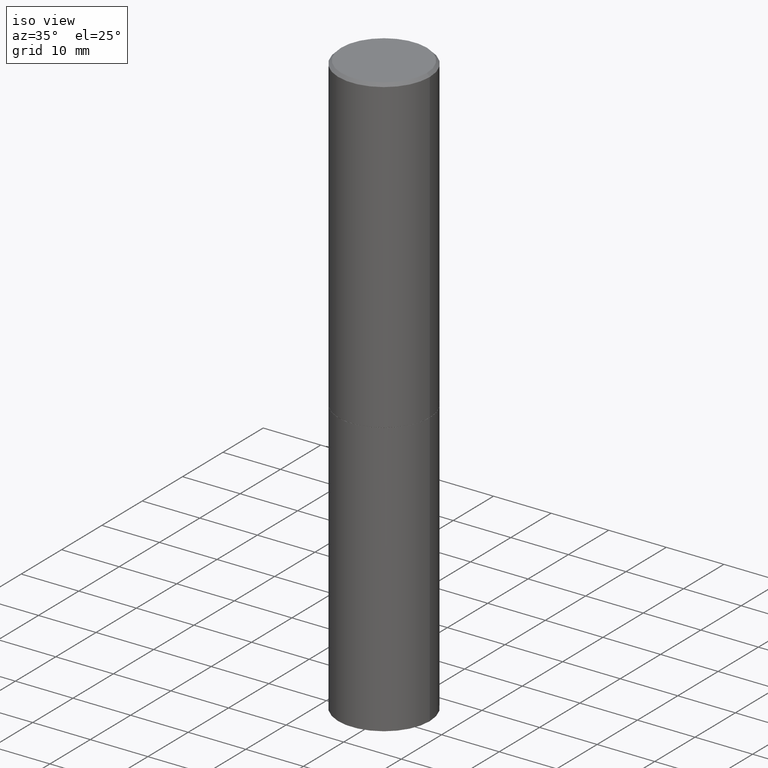
[diagram: clean part render]
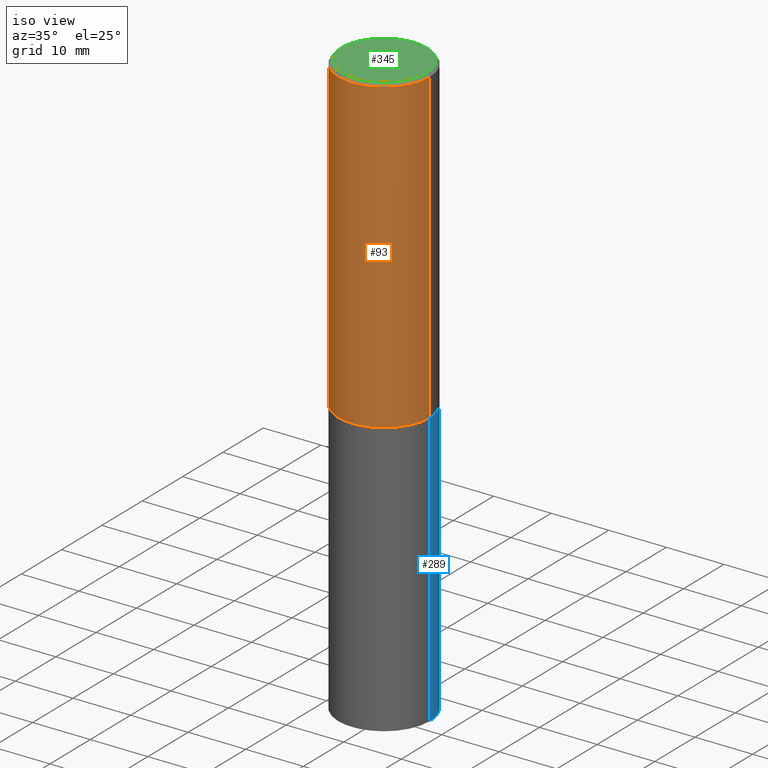
[diagram: same view with three faces highlighted in distinct colors, each labeled with its STEP entity id]
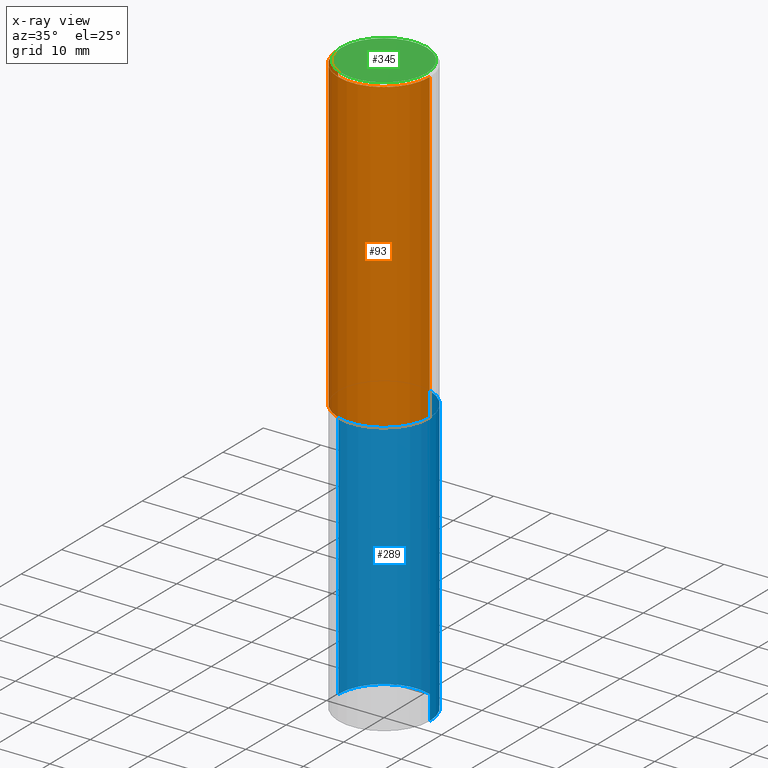
[diagram: x-ray of the same camera — body ghosted, the three highlighted faces saturated]
A machine part, iso view with three faces highlighted in distinct colors.
The next image is the same camera in x-ray (body ghosted, the three faces saturated) — at least one of them is partly hidden behind the body in this view.
Their STEP definitions:

[orange] entity #93 — the highlighted cylindrical surface (partial cylindrical patch) has radius 7.9375 mm, axis along (-0, 0, 1).
#9 = EDGE_CURVE ( 'NONE', #137, #261, #304, .T. ) ;
#17 = CIRCLE ( 'NONE', #125, 0.3125000000000000000 ) ;
#38 = DIRECTION ( 'NONE',  ( 1.000000000000000000, -6.982962677686265133E-15, 0.000000000000000000 ) ) ;
#51 = VECTOR ( 'NONE', #194, 39.37007874015748143 ) ;
#78 = EDGE_CURVE ( 'NONE', #113, #261, #82, .T. ) ;
#82 = LINE ( 'NONE', #112, #51 ) ;
#87 = CYLINDRICAL_SURFACE ( 'NONE', #147, 0.3124999999999998890 ) ;
#93 = ADVANCED_FACE ( 'NONE', ( #225 ), #87, .T. ) ;
#112 = CARTESIAN_POINT ( 'NONE',  ( 0.3124999999999998890, -2.182175836776957558E-15, 1.523805242436229235E-29 ) ) ;
#113 = VERTEX_POINT ( 'NONE', #162 ) ;
#125 = AXIS2_PLACEMENT_3D ( 'NONE', #169, #205, #38 ) ;
#137 = VERTEX_POINT ( 'NONE', #142 ) ;
#142 = CARTESIAN_POINT ( 'NONE',  ( -0.3124999999999998335, 2.112346210000093866E-15, -0.02000000000000007674 ) ) ;
#147 = AXIS2_PLACEMENT_3D ( 'NONE', #303, #360, #199 ) ;
#150 = EDGE_CURVE ( 'NONE', #357, #137, #262, .T. ) ;
#162 = CARTESIAN_POINT ( 'NONE',  ( 0.3125000000000000000, -9.598082200479797386E-15, -2.123999999999999666 ) ) ;
#165 = DIRECTION ( 'NONE',  ( -2.445468806185136597E-29, 3.491481338843145583E-15, 1.000000000000000000 ) ) ;
#169 = CARTESIAN_POINT ( 'NONE',  ( 5.194175744337229665E-29, -7.415906363702840616E-15, -2.123999999999999666 ) ) ;
#170 = ORIENTED_EDGE ( 'NONE', *, *, #9, .F. ) ;
#184 = AXIS2_PLACEMENT_3D ( 'NONE', #216, #165, #278 ) ;
#193 = EDGE_CURVE ( 'NONE', #357, #113, #17, .T. ) ;
#194 = DIRECTION ( 'NONE',  ( -2.445468806185136877E-29, 3.491481338843145188E-15, 1.000000000000000000 ) ) ;
#199 = DIRECTION ( 'NONE',  ( 1.000000000000000000, -6.982962677686266711E-15, 4.876176775795935232E-29 ) ) ;
#202 = CARTESIAN_POINT ( 'NONE',  ( -0.3124999999999998890, 2.220446049250312292E-15, -1.537167215704657391E-29 ) ) ;
#205 = DIRECTION ( 'NONE',  ( -2.445468806185136597E-29, 3.491481338843145583E-15, 1.000000000000000000 ) ) ;
#212 = CARTESIAN_POINT ( 'NONE',  ( -0.3125000000000000000, -1.522421945989535918E-15, -2.123999999999999666 ) ) ;
#216 = CARTESIAN_POINT ( 'NONE',  ( 4.890937612370292426E-31, -6.982962677686317493E-17, -0.02000000000000007674 ) ) ;
#217 = ORIENTED_EDGE ( 'NONE', *, *, #150, .F. ) ;
#225 = FACE_OUTER_BOUND ( 'NONE', #335, .T. ) ;
#227 = DIRECTION ( 'NONE',  ( -2.445468806185136877E-29, 3.491481338843145188E-15, 1.000000000000000000 ) ) ;
#242 = VECTOR ( 'NONE', #227, 39.37007874015748143 ) ;
#261 = VERTEX_POINT ( 'NONE', #324 ) ;
#262 = LINE ( 'NONE', #202, #242 ) ;
#278 = DIRECTION ( 'NONE',  ( 1.000000000000000000, -6.982962677686265133E-15, 0.000000000000000000 ) ) ;
#303 = CARTESIAN_POINT ( 'NONE',  ( 0.000000000000000000, 0.000000000000000000, 0.000000000000000000 ) ) ;
#304 = CIRCLE ( 'NONE', #184, 0.3124999999999998335 ) ;
#312 = ORIENTED_EDGE ( 'NONE', *, *, #193, .T. ) ;
#324 = CARTESIAN_POINT ( 'NONE',  ( 0.3124999999999998335, -2.213735251080465334E-15, -0.02000000000000007674 ) ) ;
#335 = EDGE_LOOP ( 'NONE', ( #217, #312, #339, #170 ) ) ;
#339 = ORIENTED_EDGE ( 'NONE', *, *, #78, .T. ) ;
#357 = VERTEX_POINT ( 'NONE', #212 ) ;
#360 = DIRECTION ( 'NONE',  ( -2.445468806185136597E-29, 3.491481338843145583E-15, 1.000000000000000000 ) ) ;

[blue] entity #289 — the highlighted cylindrical surface (partial cylindrical patch) has radius 7.9375 mm, axis along (-0, 0, 1).
#11 = AXIS2_PLACEMENT_3D ( 'NONE', #185, #179, #73 ) ;
#36 = AXIS2_PLACEMENT_3D ( 'NONE', #241, #183, #40 ) ;
#40 = DIRECTION ( 'NONE',  ( 1.000000000000000000, -6.982962677686266711E-15, 4.876176775795936353E-29 ) ) ;
#45 = VERTEX_POINT ( 'NONE', #331 ) ;
#49 = CARTESIAN_POINT ( 'NONE',  ( 0.3125000000000000000, -1.614810119214954068E-14, -4.000000000000000000 ) ) ;
#56 = ORIENTED_EDGE ( 'NONE', *, *, #80, .F. ) ;
#66 = CIRCLE ( 'NONE', #153, 0.3125000000000000000 ) ;
#73 = DIRECTION ( 'NONE',  ( 1.000000000000000000, -6.982962677686265133E-15, 0.000000000000000000 ) ) ;
#77 = DIRECTION ( 'NONE',  ( -2.445468806185136597E-29, 3.491481338843145583E-15, 1.000000000000000000 ) ) ;
#79 = DIRECTION ( 'NONE',  ( 1.000000000000000000, -6.982962677686269077E-15, 0.000000000000000000 ) ) ;
#80 = EDGE_CURVE ( 'NONE', #111, #45, #246, .T. ) ;
#88 = EDGE_CURVE ( 'NONE', #223, #337, #220, .T. ) ;
#95 = ORIENTED_EDGE ( 'NONE', *, *, #280, .F. ) ;
#99 = CARTESIAN_POINT ( 'NONE',  ( -0.3125000000000000000, -8.472215550956819896E-15, -4.000000000000000000 ) ) ;
#100 = VECTOR ( 'NONE', #192, 39.37007874015748143 ) ;
#111 = VERTEX_POINT ( 'NONE', #49 ) ;
#138 = CARTESIAN_POINT ( 'NONE',  ( 0.3125000000000000000, -2.182175836776958347E-15, 1.523805242436230075E-29 ) ) ;
#151 = CYLINDRICAL_SURFACE ( 'NONE', #36, 0.3125000000000000000 ) ;
#153 = AXIS2_PLACEMENT_3D ( 'NONE', #329, #77, #79 ) ;
#160 = CARTESIAN_POINT ( 'NONE',  ( -0.3125000000000000000, -8.472215550956819896E-15, -2.124999999999999556 ) ) ;
#179 = DIRECTION ( 'NONE',  ( -2.445468806185136597E-29, 3.491481338843145583E-15, 1.000000000000000000 ) ) ;
#183 = DIRECTION ( 'NONE',  ( -2.445468806185136597E-29, 3.491481338843145583E-15, 1.000000000000000000 ) ) ;
#185 = CARTESIAN_POINT ( 'NONE',  ( 5.196621213143414147E-29, -7.419397845041682046E-15, -2.124999999999999556 ) ) ;
#192 = DIRECTION ( 'NONE',  ( -2.445468806185136877E-29, 3.491481338843145188E-15, 1.000000000000000000 ) ) ;
#197 = ORIENTED_EDGE ( 'NONE', *, *, #364, .T. ) ;
#220 = LINE ( 'NONE', #302, #340 ) ;
#223 = VERTEX_POINT ( 'NONE', #99 ) ;
#226 = EDGE_LOOP ( 'NONE', ( #197, #346, #95, #56 ) ) ;
#241 = CARTESIAN_POINT ( 'NONE',  ( 0.000000000000000000, 0.000000000000000000, 0.000000000000000000 ) ) ;
#246 = LINE ( 'NONE', #138, #100 ) ;
#254 = DIRECTION ( 'NONE',  ( -2.445468806185136877E-29, 3.491481338843145188E-15, 1.000000000000000000 ) ) ;
#268 = CIRCLE ( 'NONE', #11, 0.3125000000000000000 ) ;
#280 = EDGE_CURVE ( 'NONE', #45, #337, #268, .T. ) ;
#289 = ADVANCED_FACE ( 'NONE', ( #297 ), #151, .T. ) ;
#297 = FACE_OUTER_BOUND ( 'NONE', #226, .T. ) ;
#302 = CARTESIAN_POINT ( 'NONE',  ( -0.3125000000000000000, 2.220446049250313081E-15, -1.537167215704658232E-29 ) ) ;
#329 = CARTESIAN_POINT ( 'NONE',  ( 9.781875224740546387E-29, -1.396592535537258233E-14, -4.000000000000000000 ) ) ;
#331 = CARTESIAN_POINT ( 'NONE',  ( 0.3125000000000000000, -9.601573681818640393E-15, -2.124999999999999556 ) ) ;
#337 = VERTEX_POINT ( 'NONE', #160 ) ;
#340 = VECTOR ( 'NONE', #254, 39.37007874015748143 ) ;
#346 = ORIENTED_EDGE ( 'NONE', *, *, #88, .T. ) ;
#364 = EDGE_CURVE ( 'NONE', #111, #223, #66, .T. ) ;

[green] entity #345 — the highlighted planar face has unit normal (0, -0, -1).
#13 = ORIENTED_EDGE ( 'NONE', *, *, #159, .T. ) ;
#14 = CARTESIAN_POINT ( 'NONE',  ( 2.042516583223231356E-15, 0.2924999999999997602, -1.019124035366569212E-15 ) ) ;
#30 = VERTEX_POINT ( 'NONE', #53 ) ;
#41 = CIRCLE ( 'NONE', #292, 0.2924999999999997602 ) ;
#53 = CARTESIAN_POINT ( 'NONE',  ( 0.2924999999999997602, -2.110215457714318353E-15, 4.268512490114932791E-18 ) ) ;
#74 = DIRECTION ( 'NONE',  ( 1.000000000000000000, -6.982962677686266711E-15, 4.876067333457693400E-29 ) ) ;
#131 = CARTESIAN_POINT ( 'NONE',  ( -0.2924999999999997602, 2.077431396611662611E-15, 4.268512490086005323E-18 ) ) ;
#144 = DIRECTION ( 'NONE',  ( 1.000000000000000000, -6.982962677686266711E-15, 4.876067333457693400E-29 ) ) ;
#148 = CIRCLE ( 'NONE', #178, 0.2924999999999997602 ) ;
#155 = PLANE ( 'NONE',  #334 ) ;
#159 = EDGE_CURVE ( 'NONE', #30, #240, #41, .T. ) ;
#178 = AXIS2_PLACEMENT_3D ( 'NONE', #277, #218, #74 ) ;
#218 = DIRECTION ( 'NONE',  ( -2.445468806185136597E-29, 3.491481338843145583E-15, 1.000000000000000000 ) ) ;
#229 = EDGE_LOOP ( 'NONE', ( #365, #13 ) ) ;
#240 = VERTEX_POINT ( 'NONE', #131 ) ;
#273 = DIRECTION ( 'NONE',  ( -1.000000000000000000, 6.982962677686265922E-15, -4.876176775795935793E-29 ) ) ;
#277 = CARTESIAN_POINT ( 'NONE',  ( -1.043851414335219820E-46, 1.490343170380447200E-32, 4.268512490100411279E-18 ) ) ;
#292 = AXIS2_PLACEMENT_3D ( 'NONE', #307, #320, #144 ) ;
#299 = DIRECTION ( 'NONE',  ( 2.438088387897960049E-29, -3.491481338843145188E-15, -1.000000000000000000 ) ) ;
#307 = CARTESIAN_POINT ( 'NONE',  ( -1.043851414335219820E-46, 1.490343170380447200E-32, 4.268512490100411279E-18 ) ) ;
#320 = DIRECTION ( 'NONE',  ( -2.445468806185136597E-29, 3.491481338843145583E-15, 1.000000000000000000 ) ) ;
#334 = AXIS2_PLACEMENT_3D ( 'NONE', #14, #299, #273 ) ;
#344 = FACE_OUTER_BOUND ( 'NONE', #229, .T. ) ;
#345 = ADVANCED_FACE ( 'NONE', ( #344 ), #155, .F. ) ;
#348 = EDGE_CURVE ( 'NONE', #240, #30, #148, .T. ) ;
#365 = ORIENTED_EDGE ( 'NONE', *, *, #348, .T. ) ;